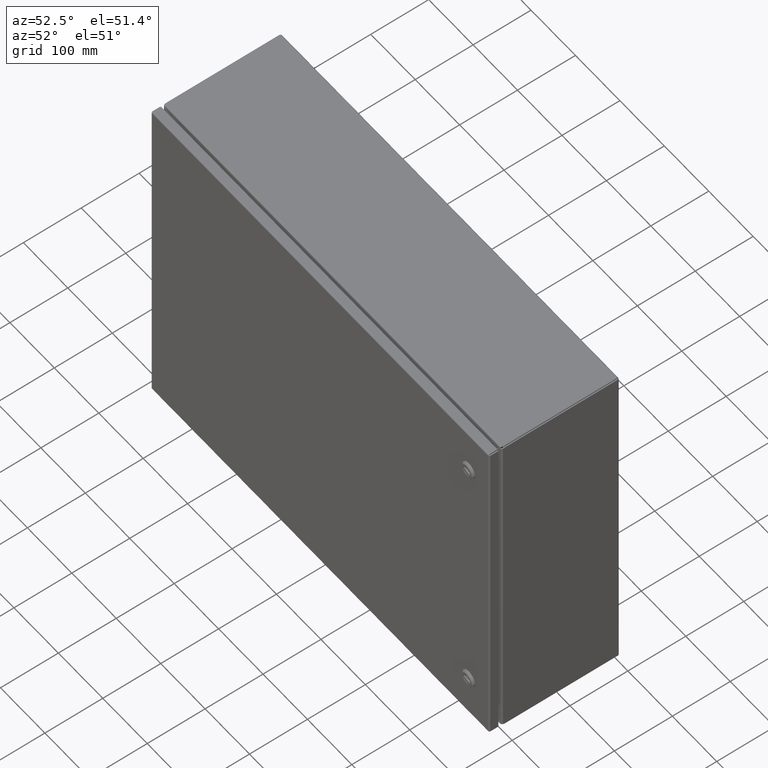
[diagram: clean part render]
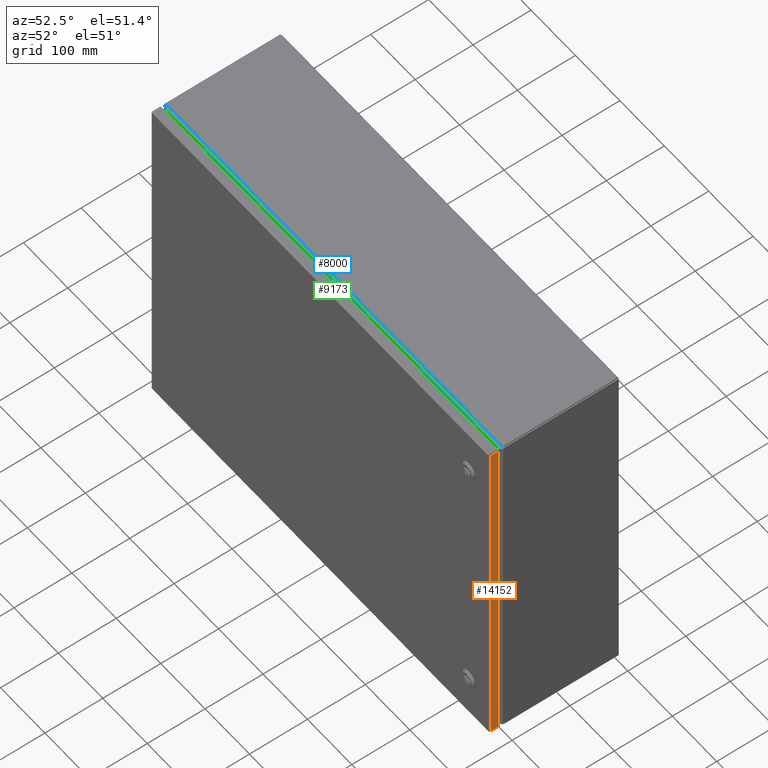
[diagram: same view with three faces highlighted in distinct colors, each labeled with its STEP entity id]
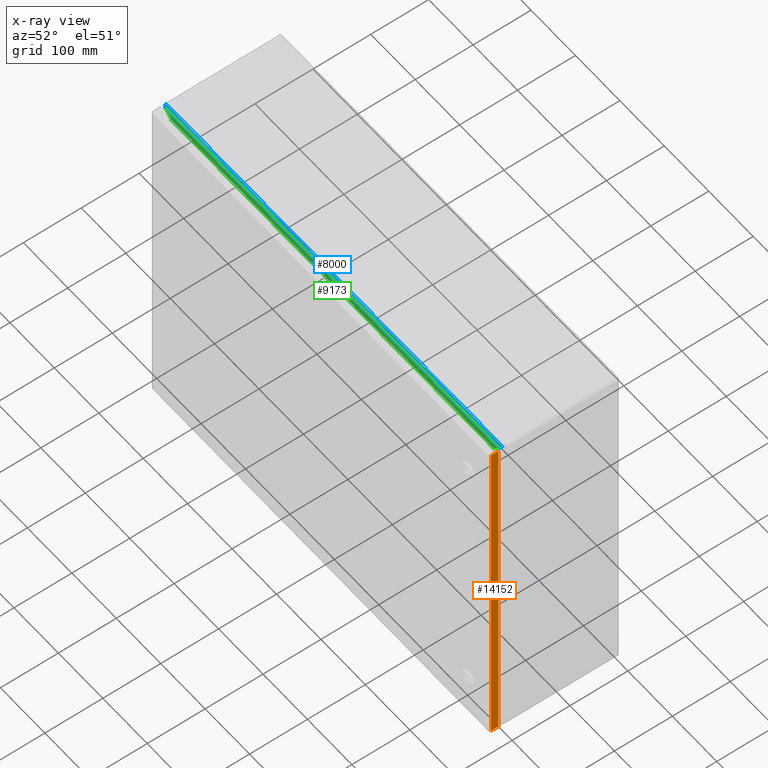
[diagram: x-ray of the same camera — body ghosted, the three highlighted faces saturated]
A machine part, auxiliary view with three faces highlighted in distinct colors.
The next image is the same camera in x-ray (body ghosted, the three faces saturated) — at least one of them is partly hidden behind the body in this view.
Their STEP definitions:

[orange] entity #14152 — the highlighted planar face has unit normal (1, 0, 0).
#685 = VECTOR ( 'NONE', #9244, 39.37007874015748143 ) ;
#909 = LINE ( 'NONE', #6998, #685 ) ;
#2213 = PLANE ( 'NONE',  #6980 ) ;
#2243 = CARTESIAN_POINT ( 'NONE',  ( 14.97299999999999187, -8.212000000000001521, -11.91292125984252337 ) ) ;
#2580 = CARTESIAN_POINT ( 'NONE',  ( 14.97299999999999187, -8.774500000000001521, -11.91292125984252337 ) ) ;
#4288 = DIRECTION ( 'NONE',  ( -0.0000000000000000000, 0.0000000000000000000, 1.000000000000000000 ) ) ;
#4329 = CARTESIAN_POINT ( 'NONE',  ( 14.97299999999999187, -8.212000000000001521, 11.91192125984251682 ) ) ;
#6405 = EDGE_CURVE ( 'NONE', #14464, #18180, #10218, .T. ) ;
#6980 = AXIS2_PLACEMENT_3D ( 'NONE', #22086, #7926, #18384 ) ;
#6998 = CARTESIAN_POINT ( 'NONE',  ( 14.97299999999999187, -8.774500000000001521, 11.91192125984251682 ) ) ;
#7132 = VECTOR ( 'NONE', #20815, 39.37007874015748143 ) ;
#7299 = EDGE_LOOP ( 'NONE', ( #18704, #17937, #10075, #16983 ) ) ;
#7926 = DIRECTION ( 'NONE',  ( 1.000000000000000000, 6.123031769111889989E-17, 0.0000000000000000000 ) ) ;
#8496 = CARTESIAN_POINT ( 'NONE',  ( 14.97299999999999187, -8.729000000000009862, 11.87599999999999767 ) ) ;
#9244 = DIRECTION ( 'NONE',  ( -0.0000000000000000000, -1.000000000000000000, -0.0000000000000000000 ) ) ;
#10075 = ORIENTED_EDGE ( 'NONE', *, *, #11871, .T. ) ;
#10218 = LINE ( 'NONE', #8496, #7132 ) ;
#11871 = EDGE_CURVE ( 'NONE', #13785, #18696, #14224, .T. ) ;
#13785 = VERTEX_POINT ( 'NONE', #2243 ) ;
#14152 = ADVANCED_FACE ( 'NONE', ( #26068 ), #2213, .T. ) ;
#14224 = LINE ( 'NONE', #20581, #14428 ) ;
#14428 = VECTOR ( 'NONE', #4288, 39.37007874015748143 ) ;
#14464 = VERTEX_POINT ( 'NONE', #14722 ) ;
#14722 = CARTESIAN_POINT ( 'NONE',  ( 14.97299999999999187, -8.729000000000011639, -11.91292125984252337 ) ) ;
#15374 = VECTOR ( 'NONE', #17162, 39.37007874015748143 ) ;
#16909 = EDGE_CURVE ( 'NONE', #18696, #18180, #909, .T. ) ;
#16983 = ORIENTED_EDGE ( 'NONE', *, *, #16909, .T. ) ;
#17162 = DIRECTION ( 'NONE',  ( -0.0000000000000000000, 1.000000000000000000, 0.0000000000000000000 ) ) ;
#17937 = ORIENTED_EDGE ( 'NONE', *, *, #20763, .T. ) ;
#18180 = VERTEX_POINT ( 'NONE', #21590 ) ;
#18384 = DIRECTION ( 'NONE',  ( -6.123031769111889989E-17, 1.000000000000000000, 0.0000000000000000000 ) ) ;
#18696 = VERTEX_POINT ( 'NONE', #4329 ) ;
#18704 = ORIENTED_EDGE ( 'NONE', *, *, #6405, .F. ) ;
#20581 = CARTESIAN_POINT ( 'NONE',  ( 14.97299999999999187, -8.212000000000001521, -11.87700000000000422 ) ) ;
#20763 = EDGE_CURVE ( 'NONE', #14464, #13785, #20998, .T. ) ;
#20815 = DIRECTION ( 'NONE',  ( -1.224606353822379970E-16, 6.123031769111889989E-17, 1.000000000000000000 ) ) ;
#20998 = LINE ( 'NONE', #2580, #15374 ) ;
#21590 = CARTESIAN_POINT ( 'NONE',  ( 14.97299999999999187, -8.729000000000004533, 11.91192125984251682 ) ) ;
#22086 = CARTESIAN_POINT ( 'NONE',  ( 14.97299999999999187, -8.774500000000001521, 11.87599999999999767 ) ) ;
#26068 = FACE_OUTER_BOUND ( 'NONE', #7299, .T. ) ;

[blue] entity #8000 — the highlighted cylindrical surface (edge-blend (fillet) strip) has radius 2.7432 mm, axis along (1, -0, 0).
#14 = ORIENTED_EDGE ( 'NONE', *, *, #18706, .T. ) ;
#433 = VERTEX_POINT ( 'NONE', #21963 ) ;
#817 = CARTESIAN_POINT ( 'NONE',  ( -14.90269757624364999, -7.906554736044659748, 11.99925669541495310 ) ) ;
#856 = AXIS2_PLACEMENT_3D ( 'NONE', #7774, #1286, #5514 ) ;
#1286 = DIRECTION ( 'NONE',  ( 1.000000000000000000, -1.047708678465270071E-17, 5.075323090646619610E-17 ) ) ;
#2395 = CARTESIAN_POINT ( 'NONE',  ( -14.90555033637158466, -7.891999999999999460, 12.00000000000000355 ) ) ;
#2529 = CARTESIAN_POINT ( 'NONE',  ( -14.88938689752303013, -7.958727875493403658, 11.97721624487699366 ) ) ;
#2609 = CARTESIAN_POINT ( 'NONE',  ( 14.88758394289168407, -7.963993176432742516, 11.97281824995788213 ) ) ;
#2658 = CARTESIAN_POINT ( 'NONE',  ( 14.85841399277176045, -8.000000000000001776, 11.89200000000000124 ) ) ;
#2880 = CARTESIAN_POINT ( 'NONE',  ( 14.90417131701704712, -7.899251582489950962, 12.00000000000000355 ) ) ;
#2929 = CARTESIAN_POINT ( 'NONE',  ( -14.88156592133742251, -7.978549741144328245, 11.95697808123220263 ) ) ;
#3001 = CARTESIAN_POINT ( 'NONE',  ( 14.86833933353167225, -7.996713345527909134, 11.91932970780023027 ) ) ;
#3485 = VERTEX_POINT ( 'NONE', #2658 ) ;
#4526 = CARTESIAN_POINT ( 'NONE',  ( -14.88752910090071957, -7.964144230875503716, 11.97268097711781820 ) ) ;
#4592 = CARTESIAN_POINT ( 'NONE',  ( 14.90555033637158466, -7.891999999999999460, 11.99999999999999822 ) ) ;
#4864 = CARTESIAN_POINT ( 'NONE',  ( 14.87747153111666343, -7.986832124527309063, 11.94554412817821465 ) ) ;
#4980 = VECTOR ( 'NONE', #14774, 39.37007874015748143 ) ;
#5116 = DIRECTION ( 'NONE',  ( 1.000000000000000000, -1.047708678465270071E-17, 5.075323090646619610E-17 ) ) ;
#5123 = CARTESIAN_POINT ( 'NONE',  ( 14.86351101046224521, -7.999343367655334269, 11.90575496566716573 ) ) ;
#5514 = DIRECTION ( 'NONE',  ( 0.0000000000000000000, 0.0000000000000000000, -1.000000000000000000 ) ) ;
#6703 = CARTESIAN_POINT ( 'NONE',  ( 104.2979999999999876, -7.891999999999999460, 12.00000000000000888 ) ) ;
#6983 = CARTESIAN_POINT ( 'NONE',  ( 14.86102281637609046, -8.000000000000000000, 11.89890182077515668 ) ) ;
#7041 = CARTESIAN_POINT ( 'NONE',  ( -14.86352294517056549, -7.999337985020756214, 11.90578829370072533 ) ) ;
#7379 = FACE_OUTER_BOUND ( 'NONE', #21887, .T. ) ;
#7504 = LINE ( 'NONE', #11075, #21460 ) ;
#7774 = CARTESIAN_POINT ( 'NONE',  ( -14.90555033637157578, -7.891999999999999460, 11.89200000000000124 ) ) ;
#8000 = ADVANCED_FACE ( 'NONE', ( #7379 ), #23655, .T. ) ;
#8379 = ORIENTED_EDGE ( 'NONE', *, *, #18828, .T. ) ;
#8703 = CARTESIAN_POINT ( 'NONE',  ( 14.90273170849705053, -7.906387721648938438, 11.99927674240766251 ) ) ;
#8966 = CARTESIAN_POINT ( 'NONE',  ( 14.89307984069338353, -7.946672915614588106, 11.98541113949324632 ) ) ;
#10059 = ORIENTED_EDGE ( 'NONE', *, *, #12260, .F. ) ;
#10194 = VERTEX_POINT ( 'NONE', #15687 ) ;
#10604 = CARTESIAN_POINT ( 'NONE',  ( -14.89474269135295970, -7.940619542309659273, 11.98870078995674149 ) ) ;
#10822 = CARTESIAN_POINT ( 'NONE',  ( 14.87068801560851128, -7.994722029910057870, 11.92607654541379780 ) ) ;
#10876 = CARTESIAN_POINT ( 'NONE',  ( -14.87737594900892546, -7.986214059423100586, 11.94526086499287487 ) ) ;
#11005 = CARTESIAN_POINT ( 'NONE',  ( -14.90555033637158466, -7.891999999999999460, 12.00000000000000355 ) ) ;
#11075 = CARTESIAN_POINT ( 'NONE',  ( -14.90555033637157578, -8.000000000000000000, 11.89200000000000124 ) ) ;
#11141 = CARTESIAN_POINT ( 'NONE',  ( -14.89964210496806452, -7.920663420909900054, 11.99637551127735158 ) ) ;
#12260 = EDGE_CURVE ( 'NONE', #10194, #25447, #19379, .T. ) ;
#12635 = B_SPLINE_CURVE_WITH_KNOTS ( 'NONE', 3,
 ( #4592, #2880, #8703, #24981, #24853, #23259, #8966, #13199, #2609, #12656, #4864, #10822, #3001, #5123, #6983, #17054 ),
 .UNSPECIFIED., .F., .F.,
 ( 4, 2, 2, 2, 2, 2, 2, 4 ),
 ( 2.775557561562891351E-17, 0.0005570187071104442528, 0.001114037414220860750, 0.001671056121331277247, 0.002228074828441693744, 0.003342112242662582684, 0.003899130949773001783, 0.004456149656883421316 ),
 .UNSPECIFIED. ) ;
#12656 = CARTESIAN_POINT ( 'NONE',  ( 14.88169802294806843, -7.978961421692447153, 11.95760593764099156 ) ) ;
#12990 = CARTESIAN_POINT ( 'NONE',  ( -14.86103356842266798, -8.000000000000000000, 11.89893026604762305 ) ) ;
#13199 = CARTESIAN_POINT ( 'NONE',  ( 14.88947206707049098, -7.958471076865267335, 11.97741876037263786 ) ) ;
#14774 = DIRECTION ( 'NONE',  ( -1.000000000000000000, 2.914644451333993371E-33, -5.075323090646619610E-17 ) ) ;
#14838 = CARTESIAN_POINT ( 'NONE',  ( -14.87521692441248966, -7.989454345386466372, 11.93907377378106460 ) ) ;
#15115 = CARTESIAN_POINT ( 'NONE',  ( -14.85841399277179420, -8.000000000000000000, 11.89200000000000124 ) ) ;
#15687 = CARTESIAN_POINT ( 'NONE',  ( -14.85841399277179420, -8.000000000000000000, 11.89200000000000124 ) ) ;
#17054 = CARTESIAN_POINT ( 'NONE',  ( 14.85841399277176045, -8.000000000000001776, 11.89200000000000124 ) ) ;
#17109 = CARTESIAN_POINT ( 'NONE',  ( -14.86833894913120879, -7.996712433941991272, 11.91932885378930251 ) ) ;
#18706 = EDGE_CURVE ( 'NONE', #433, #25447, #20481, .T. ) ;
#18828 = EDGE_CURVE ( 'NONE', #10194, #3485, #7504, .T. ) ;
#18963 = CARTESIAN_POINT ( 'NONE',  ( -14.89298721396873404, -7.946996500296869215, 11.98521911131251549 ) ) ;
#19224 = CARTESIAN_POINT ( 'NONE',  ( -14.90416501591597331, -7.899284716872077894, 12.00000000000000178 ) ) ;
#19379 = B_SPLINE_CURVE_WITH_KNOTS ( 'NONE', 3,
 ( #15115, #12990, #7041, #17109, #24647, #14838, #10876, #2929, #25049, #4526, #2529, #18963, #10604, #24781, #11141, #817, #19224, #11005 ),
 .UNSPECIFIED., .F., .F.,
 ( 4, 2, 2, 2, 2, 2, 2, 2, 4 ),
 ( 1.777223989483336522E-16, 0.0005565672539425562185, 0.001113134507884934845, 0.001669701761827313471, 0.002226269015769691880, 0.002782836269712070289, 0.003339403523654449132, 0.003895970777596827542, 0.004452538031539205951 ),
 .UNSPECIFIED. ) ;
#20481 = LINE ( 'NONE', #6703, #4980 ) ;
#21460 = VECTOR ( 'NONE', #5116, 39.37007874015748143 ) ;
#21887 = EDGE_LOOP ( 'NONE', ( #14, #10059, #8379, #24063 ) ) ;
#21963 = CARTESIAN_POINT ( 'NONE',  ( 14.90555033637158466, -7.891999999999999460, 11.99999999999999822 ) ) ;
#23259 = CARTESIAN_POINT ( 'NONE',  ( 14.89478854064925706, -7.940446123784892229, 11.98878521227231708 ) ) ;
#23655 = CYLINDRICAL_SURFACE ( 'NONE', #856, 0.1080000000000000543 ) ;
#24063 = ORIENTED_EDGE ( 'NONE', *, *, #24527, .F. ) ;
#24527 = EDGE_CURVE ( 'NONE', #433, #3485, #12635, .T. ) ;
#24647 = CARTESIAN_POINT ( 'NONE',  ( -14.87068248261778436, -7.994728577003280989, 11.92606066763257644 ) ) ;
#24781 = CARTESIAN_POINT ( 'NONE',  ( -14.89806177563219336, -7.927476198680025732, 11.99425625653168481 ) ) ;
#24853 = CARTESIAN_POINT ( 'NONE',  ( 14.89808920968787653, -7.927359237424621341, 11.99429432317156241 ) ) ;
#24981 = CARTESIAN_POINT ( 'NONE',  ( 14.89969483343167411, -7.920429089353698160, 11.99643702827238556 ) ) ;
#25049 = CARTESIAN_POINT ( 'NONE',  ( -14.88361781495061642, -7.974067397104792398, 11.96256310969442360 ) ) ;
#25447 = VERTEX_POINT ( 'NONE', #2395 ) ;

[green] entity #9173 — the highlighted planar face has unit normal (-0, 1, -0).
#153 = VERTEX_POINT ( 'NONE', #16823 ) ;
#513 = CIRCLE ( 'NONE', #1794, 0.3823609811090009081 ) ;
#1291 = AXIS2_PLACEMENT_3D ( 'NONE', #6826, #6962, #2859 ) ;
#1645 = DIRECTION ( 'NONE',  ( 0.0000000000000000000, 0.0000000000000000000, 1.000000000000000000 ) ) ;
#1794 = AXIS2_PLACEMENT_3D ( 'NONE', #4770, #2514, #11124 ) ;
#2337 = EDGE_CURVE ( 'NONE', #24968, #10194, #513, .T. ) ;
#2490 = EDGE_CURVE ( 'NONE', #3485, #10249, #10241, .T. ) ;
#2514 = DIRECTION ( 'NONE',  ( -2.782976177173370593E-18, 1.000000000000000000, 9.651569803459179993E-18 ) ) ;
#2658 = CARTESIAN_POINT ( 'NONE',  ( 14.85841399277176045, -8.000000000000001776, 11.89200000000000124 ) ) ;
#2794 = EDGE_CURVE ( 'NONE', #24968, #153, #14804, .T. ) ;
#2834 = EDGE_CURVE ( 'NONE', #20555, #10249, #21175, .T. ) ;
#2859 = DIRECTION ( 'NONE',  ( 0.0000000000000000000, 0.0000000000000000000, 1.000000000000000000 ) ) ;
#3180 = DIRECTION ( 'NONE',  ( -2.782976177173370593E-18, 1.000000000000000000, 9.651569803459179993E-18 ) ) ;
#3485 = VERTEX_POINT ( 'NONE', #2658 ) ;
#3584 = CARTESIAN_POINT ( 'NONE',  ( 104.2979999999999876, -8.000000000000000000, 11.92800000000000615 ) ) ;
#3747 = ORIENTED_EDGE ( 'NONE', *, *, #2337, .F. ) ;
#4427 = ORIENTED_EDGE ( 'NONE', *, *, #2490, .F. ) ;
#4770 = CARTESIAN_POINT ( 'NONE',  ( -14.54552766349240223, -8.000000000000001776, 12.11177730734704738 ) ) ;
#5005 = CARTESIAN_POINT ( 'NONE',  ( -14.80606090696553956, -8.000000000000001776, 11.83191600434142465 ) ) ;
#5116 = DIRECTION ( 'NONE',  ( 1.000000000000000000, -1.047708678465270071E-17, 5.075323090646619610E-17 ) ) ;
#5277 = LINE ( 'NONE', #25542, #24812 ) ;
#6826 = CARTESIAN_POINT ( 'NONE',  ( -27.75433091966492327, -8.000000000000001776, -2.076941341904906757 ) ) ;
#6962 = DIRECTION ( 'NONE',  ( -2.782976177173370593E-18, 1.000000000000000000, 9.651569803459179993E-18 ) ) ;
#7247 = CARTESIAN_POINT ( 'NONE',  ( 14.24337952115827122, -8.000000000000000000, 11.28599999999999781 ) ) ;
#7504 = LINE ( 'NONE', #11075, #21460 ) ;
#7950 = FACE_OUTER_BOUND ( 'NONE', #17682, .T. ) ;
#8860 = AXIS2_PLACEMENT_3D ( 'NONE', #3584, #23977, #19877 ) ;
#9173 = ADVANCED_FACE ( 'NONE', ( #7950 ), #23707, .F. ) ;
#10194 = VERTEX_POINT ( 'NONE', #15687 ) ;
#10241 = CIRCLE ( 'NONE', #25048, 0.3823609811090009081 ) ;
#10249 = VERTEX_POINT ( 'NONE', #25061 ) ;
#10777 = ORIENTED_EDGE ( 'NONE', *, *, #17938, .F. ) ;
#11075 = CARTESIAN_POINT ( 'NONE',  ( -14.90555033637157578, -8.000000000000000000, 11.89200000000000124 ) ) ;
#11124 = DIRECTION ( 'NONE',  ( 0.0000000000000000000, 0.0000000000000000000, 1.000000000000000000 ) ) ;
#11455 = CARTESIAN_POINT ( 'NONE',  ( 27.75433091966492327, -8.000000000000001776, -2.076941341904903648 ) ) ;
#11741 = CARTESIAN_POINT ( 'NONE',  ( 14.54552766349240223, -8.000000000000001776, 12.11177730734704738 ) ) ;
#14804 = CIRCLE ( 'NONE', #1291, 19.00300000000000011 ) ;
#15687 = CARTESIAN_POINT ( 'NONE',  ( -14.85841399277179420, -8.000000000000000000, 11.89200000000000124 ) ) ;
#16823 = CARTESIAN_POINT ( 'NONE',  ( -14.24337952115827122, -8.000000000000001776, 11.28599999999999781 ) ) ;
#17682 = EDGE_LOOP ( 'NONE', ( #20557, #4427, #20412, #3747, #19549, #10777 ) ) ;
#17938 = EDGE_CURVE ( 'NONE', #20555, #153, #5277, .T. ) ;
#18828 = EDGE_CURVE ( 'NONE', #10194, #3485, #7504, .T. ) ;
#19322 = DIRECTION ( 'NONE',  ( -1.000000000000000000, -2.782976177173369823E-18, -6.123031769111889989E-17 ) ) ;
#19544 = DIRECTION ( 'NONE',  ( -2.782976177173370593E-18, 1.000000000000000000, 9.651569803459179993E-18 ) ) ;
#19549 = ORIENTED_EDGE ( 'NONE', *, *, #2794, .T. ) ;
#19877 = DIRECTION ( 'NONE',  ( 1.000000000000000000, 2.782976177173369823E-18, 6.123031769111889989E-17 ) ) ;
#20412 = ORIENTED_EDGE ( 'NONE', *, *, #18828, .F. ) ;
#20555 = VERTEX_POINT ( 'NONE', #7247 ) ;
#20557 = ORIENTED_EDGE ( 'NONE', *, *, #2834, .T. ) ;
#21175 = CIRCLE ( 'NONE', #24532, 19.00300000000000011 ) ;
#21460 = VECTOR ( 'NONE', #5116, 39.37007874015748143 ) ;
#23707 = PLANE ( 'NONE',  #8860 ) ;
#23977 = DIRECTION ( 'NONE',  ( -2.782976177173369823E-18, 1.000000000000000000, -1.704025154551410223E-34 ) ) ;
#24175 = DIRECTION ( 'NONE',  ( 0.0000000000000000000, 0.0000000000000000000, 1.000000000000000000 ) ) ;
#24532 = AXIS2_PLACEMENT_3D ( 'NONE', #11455, #19544, #1645 ) ;
#24812 = VECTOR ( 'NONE', #19322, 39.37007874015748143 ) ;
#24968 = VERTEX_POINT ( 'NONE', #5005 ) ;
#25048 = AXIS2_PLACEMENT_3D ( 'NONE', #11741, #3180, #24175 ) ;
#25061 = CARTESIAN_POINT ( 'NONE',  ( 14.80606090696551291, -8.000000000000001776, 11.83191600434139268 ) ) ;
#25542 = CARTESIAN_POINT ( 'NONE',  ( 104.2979999999999876, -8.000000000000000000, 11.28600000000000669 ) ) ;